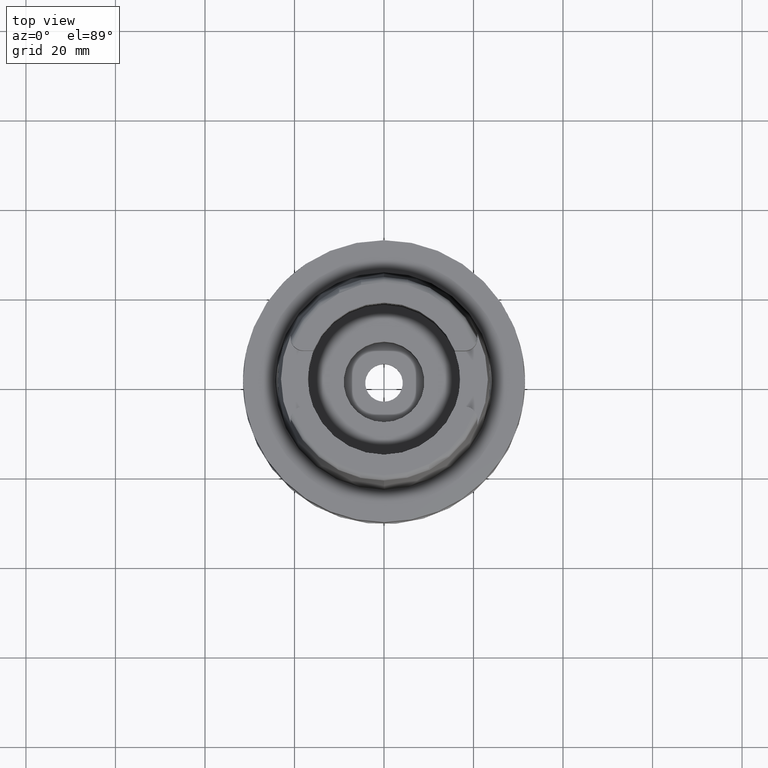
[diagram: clean part render]
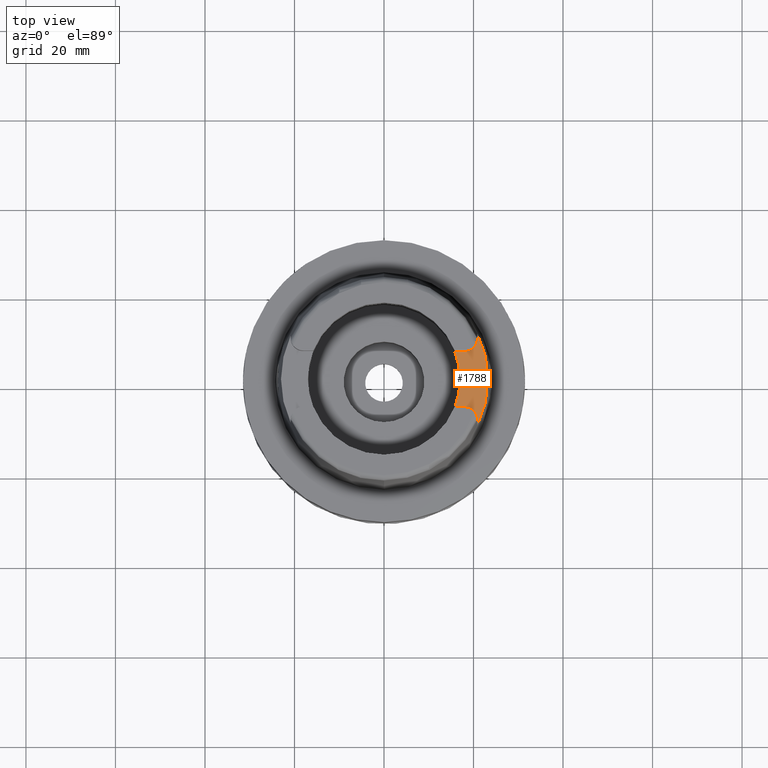
[diagram: same view with one face highlighted and labeled with its STEP entity id]
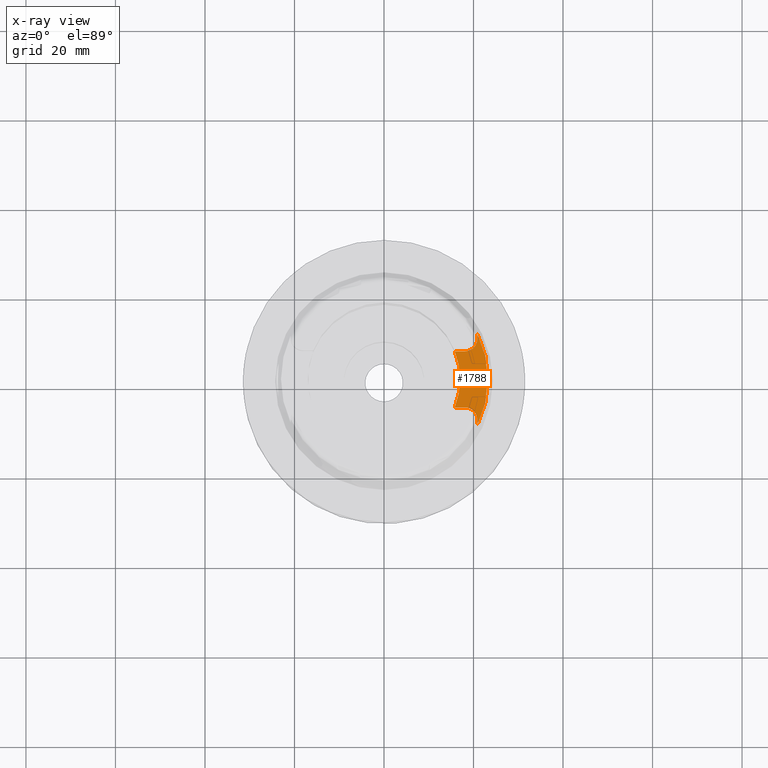
[diagram: x-ray of the same camera — body ghosted, the highlighted face saturated]
A machine part, top view. The second image highlights one B-rep face of the part: STEP entity #1788.
The next image is the same camera in x-ray: the body ghosted, the highlighted face saturated — about 0% of this face is hidden behind the body in this view.
In plain terms, the highlighted planar face has unit normal (0, 0, 1).
Its self-contained STEP definition (entity closure, byte-faithful):
#5 = CARTESIAN_POINT ( 'NONE',  ( 20.87000000000000099, -9.070000000000000284, 22.00000000000000000 ) ) ;
#60 = ORIENTED_EDGE ( 'NONE', *, *, #2297, .F. ) ;
#152 = ORIENTED_EDGE ( 'NONE', *, *, #5080, .F. ) ;
#216 = DIRECTION ( 'NONE',  ( 1.000000000000000000, 0.0000000000000000000, 0.0000000000000000000 ) ) ;
#274 = CARTESIAN_POINT ( 'NONE',  ( 0.0000000000000000000, 0.0000000000000000000, 22.00000000000000000 ) ) ;
#360 = ORIENTED_EDGE ( 'NONE', *, *, #3439, .F. ) ;
#510 = DIRECTION ( 'NONE',  ( 0.8989877876694615244, 0.4379736951246811505, 0.0000000000000000000 ) ) ;
#553 = CARTESIAN_POINT ( 'NONE',  ( 20.87000000000000099, 9.070000000000000284, 22.00000000000000000 ) ) ;
#607 = AXIS2_PLACEMENT_3D ( 'NONE', #2995, #776, #5117 ) ;
#655 = CARTESIAN_POINT ( 'NONE',  ( 20.87000000000000099, -10.16755860605000095, 22.00000000000000000 ) ) ;
#761 = DIRECTION ( 'NONE',  ( -1.000000000000000000, -8.496094534321000305E-14, 0.0000000000000000000 ) ) ;
#776 = DIRECTION ( 'NONE',  ( 0.0000000000000000000, 0.0000000000000000000, 1.000000000000000000 ) ) ;
#791 = ORIENTED_EDGE ( 'NONE', *, *, #4489, .F. ) ;
#794 = EDGE_CURVE ( 'NONE', #2000, #4872, #2023, .T. ) ;
#795 = CARTESIAN_POINT ( 'NONE',  ( 0.0000000000000000000, 0.0000000000000000000, 22.00000000000000000 ) ) ;
#903 = EDGE_LOOP ( 'NONE', ( #360, #791, #1874, #152, #2582, #4882, #5082, #60 ) ) ;
#977 = VECTOR ( 'NONE', #3560, 1000.000000000000000 ) ;
#1076 = DIRECTION ( 'NONE',  ( 0.0000000000000000000, 0.0000000000000000000, 1.000000000000000000 ) ) ;
#1148 = CARTESIAN_POINT ( 'NONE',  ( 15.80149043602999903, 6.270000000000000462, 22.00000000000000000 ) ) ;
#1153 = DIRECTION ( 'NONE',  ( 1.000000000000000000, 0.0000000000000000000, 0.0000000000000000000 ) ) ;
#1268 = AXIS2_PLACEMENT_3D ( 'NONE', #3999, #1076, #216 ) ;
#1450 = CIRCLE ( 'NONE', #4631, 23.21499834174998966 ) ;
#1750 = LINE ( 'NONE', #553, #1978 ) ;
#1788 = ADVANCED_FACE ( 'NONE', ( #4186 ), #5071, .T. ) ;
#1862 = CARTESIAN_POINT ( 'NONE',  ( 20.87000000000000099, -10.16755860605000095, 22.00000000000000000 ) ) ;
#1874 = ORIENTED_EDGE ( 'NONE', *, *, #2068, .F. ) ;
#1904 = LINE ( 'NONE', #1148, #977 ) ;
#1906 = VERTEX_POINT ( 'NONE', #655 ) ;
#1978 = VECTOR ( 'NONE', #2250, 999.9999999999998863 ) ;
#2000 = VERTEX_POINT ( 'NONE', #2753 ) ;
#2023 = CIRCLE ( 'NONE', #607, 2.800000000000000266 ) ;
#2032 = DIRECTION ( 'NONE',  ( 0.9294994374136111848, -0.3688235294118045182, 0.0000000000000000000 ) ) ;
#2068 = EDGE_CURVE ( 'NONE', #1906, #5393, #3316, .T. ) ;
#2096 = CARTESIAN_POINT ( 'NONE',  ( 15.80149043602999903, -6.270000000000000462, 22.00000000000000000 ) ) ;
#2250 = DIRECTION ( 'NONE',  ( -4.018343739316107275E-06, 0.9999999999919265692, -7.121100977230194019E-14 ) ) ;
#2297 = EDGE_CURVE ( 'NONE', #5383, #2905, #5317, .T. ) ;
#2492 = DIRECTION ( 'NONE',  ( 0.0000000000000000000, 0.0000000000000000000, 1.000000000000000000 ) ) ;
#2494 = VECTOR ( 'NONE', #761, 1000.000000000000000 ) ;
#2582 = ORIENTED_EDGE ( 'NONE', *, *, #4276, .F. ) ;
#2645 = CARTESIAN_POINT ( 'NONE',  ( 0.0000000000000000000, 0.0000000000000000000, 22.00000000000000000 ) ) ;
#2753 = CARTESIAN_POINT ( 'NONE',  ( 18.07000000000000028, 6.270000000000000462, 22.00000000000000000 ) ) ;
#2905 = VERTEX_POINT ( 'NONE', #4569 ) ;
#2995 = CARTESIAN_POINT ( 'NONE',  ( 18.07000000000000028, 9.070000000000000284, 22.00000000000000000 ) ) ;
#3240 = EDGE_CURVE ( 'NONE', #2905, #2000, #1904, .T. ) ;
#3316 = B_SPLINE_CURVE_WITH_KNOTS ( 'NONE', 3,
 ( #1862, #5199, #3546, #4713 ),
 .UNSPECIFIED., .F., .F.,
 ( 4, 4 ),
 ( 0.0000000000000000000, 1.000000000000000000 ),
 .UNSPECIFIED. ) ;
#3439 = EDGE_CURVE ( 'NONE', #3734, #5383, #5422, .T. ) ;
#3450 = CARTESIAN_POINT ( 'NONE',  ( 20.87000000000000099, 10.16755860605000095, 22.00000000000000000 ) ) ;
#3546 = CARTESIAN_POINT ( 'NONE',  ( 20.87000000000000099, -9.435852868557860873, 22.00000000000000000 ) ) ;
#3560 = DIRECTION ( 'NONE',  ( 1.000000000000000000, -8.222026968698000936E-14, 0.0000000000000000000 ) ) ;
#3649 = CIRCLE ( 'NONE', #1268, 2.800000000000000266 ) ;
#3722 = VERTEX_POINT ( 'NONE', #3450 ) ;
#3734 = VERTEX_POINT ( 'NONE', #5148 ) ;
#3999 = CARTESIAN_POINT ( 'NONE',  ( 18.07000000000000028, -9.070000000000000284, 22.00000000000000000 ) ) ;
#4186 = FACE_OUTER_BOUND ( 'NONE', #903, .T. ) ;
#4276 = EDGE_CURVE ( 'NONE', #4872, #3722, #1750, .T. ) ;
#4326 = AXIS2_PLACEMENT_3D ( 'NONE', #795, #2492, #1153 ) ;
#4489 = EDGE_CURVE ( 'NONE', #5393, #3734, #3649, .T. ) ;
#4556 = CARTESIAN_POINT ( 'NONE',  ( 18.07000000000000028, -6.270000000000000462, 22.00000000000000000 ) ) ;
#4569 = CARTESIAN_POINT ( 'NONE',  ( 15.80149043602999903, 6.270000000000000462, 22.00000000000000000 ) ) ;
#4631 = AXIS2_PLACEMENT_3D ( 'NONE', #2645, #4724, #510 ) ;
#4713 = CARTESIAN_POINT ( 'NONE',  ( 20.87000000000000099, -9.070000000000000284, 22.00000000000000000 ) ) ;
#4724 = DIRECTION ( 'NONE',  ( 0.0000000000000000000, 0.0000000000000000000, -1.000000000000000000 ) ) ;
#4854 = DIRECTION ( 'NONE',  ( 0.0000000000000000000, 0.0000000000000000000, 1.000000000000000000 ) ) ;
#4872 = VERTEX_POINT ( 'NONE', #5033 ) ;
#4882 = ORIENTED_EDGE ( 'NONE', *, *, #794, .F. ) ;
#5033 = CARTESIAN_POINT ( 'NONE',  ( 20.87000000000000099, 9.070000000000000284, 22.00000000000000000 ) ) ;
#5071 = PLANE ( 'NONE',  #4326 ) ;
#5080 = EDGE_CURVE ( 'NONE', #3722, #1906, #1450, .T. ) ;
#5082 = ORIENTED_EDGE ( 'NONE', *, *, #3240, .F. ) ;
#5117 = DIRECTION ( 'NONE',  ( 0.0000000000000000000, -1.000000000000000000, 0.0000000000000000000 ) ) ;
#5140 = AXIS2_PLACEMENT_3D ( 'NONE', #274, #4854, #2032 ) ;
#5148 = CARTESIAN_POINT ( 'NONE',  ( 18.07000000000000028, -6.270000000000000462, 22.00000000000000000 ) ) ;
#5199 = CARTESIAN_POINT ( 'NONE',  ( 20.87000000000000099, -9.801705737115721462, 22.00000000000000000 ) ) ;
#5317 = CIRCLE ( 'NONE', #5140, 17.00000000000000000 ) ;
#5383 = VERTEX_POINT ( 'NONE', #2096 ) ;
#5393 = VERTEX_POINT ( 'NONE', #5 ) ;
#5422 = LINE ( 'NONE', #4556, #2494 ) ;